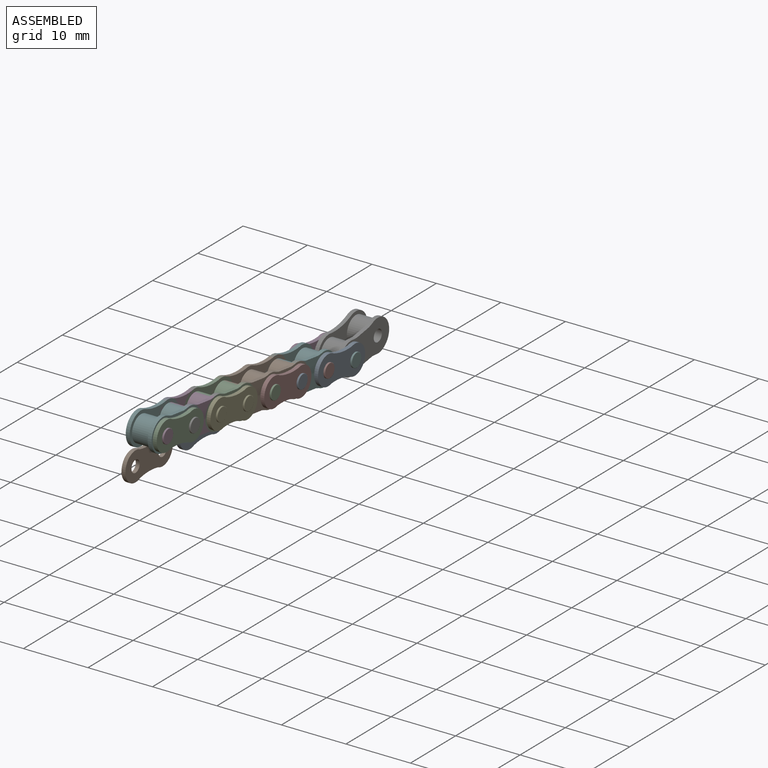
[diagram: assembled view]
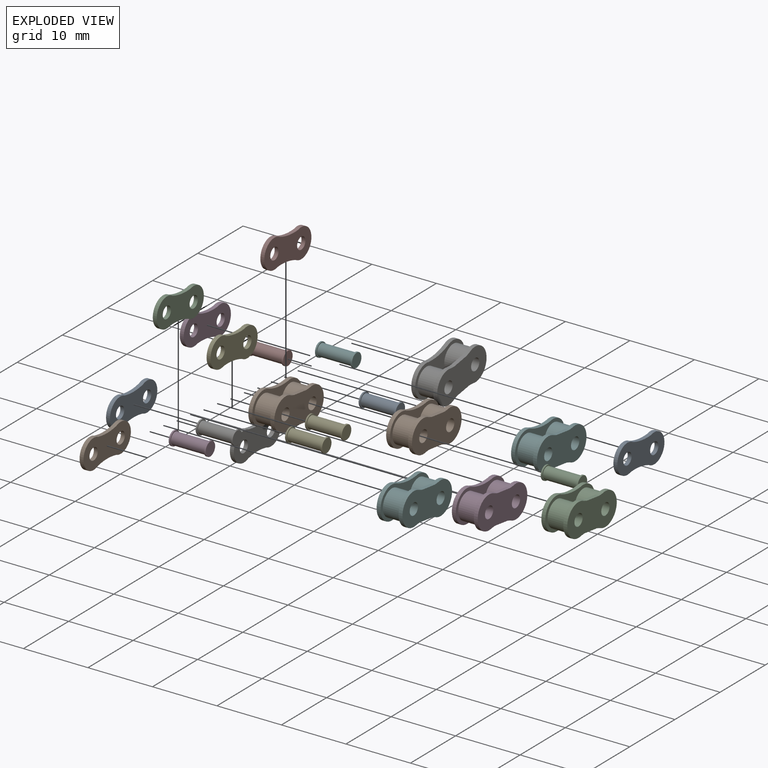
[diagram: exploded view]
GUIDED TOUR — MATED ASSEMBLY (Onshape document b15f33e1501463d08e46a01f, AutoMate assembly b15f33e1501463d08e46a01f_a6f2cac323ecb9b9a841ccf3_7491e7c9d8eb97303f44994c_default)

This assembly has 23 components, labeled P0..P22 below (a component is one placed occurrence of a part; the same part can appear more than once), held together by 9 mates. A mate is a constraint between two components; its type names the relative motion it leaves free:
  CYLINDRICAL — leaves both rotation about and translation along the listed axis free,
  PLANAR — leaves sliding in the plane through the listed point (normal = the listed direction) and rotation about that normal free,
  REVOLUTE — leaves rotation about the listed axis free (a hinge).
Axis/direction vectors are unit vectors and 'through' points are millimeter coordinates, both in the assembly's world frame.

MATES
  1. PLANAR "Planar 2": P11 <-> P13, direction (-1.000, 0.000, 0.000) through (1.30, 15.41, -2.81) mm
  2. CYLINDRICAL "Cylindrical 2": P13 <-> P0, axis (-1.000, 0.000, 0.000) through (3.92, 18.38, -3.21) mm
  3. CYLINDRICAL "Cylindrical 1": P11 <-> P13, axis (-1.000, 0.000, 0.000) through (1.30, 18.38, -3.21) mm
  4. REVOLUTE "Revolute 1": P13 <-> P14, axis (-1.000, 0.000, 0.000) through (3.92, 18.38, -3.21) mm
  5. REVOLUTE "Revolute 2": P5 <-> P15, axis (-1.000, 0.000, 0.000) through (3.92, 12.43, -2.42) mm
  6. PLANAR "Planar 1": P0 <-> P13, direction (1.000, 0.000, 0.000) through (6.53, 18.38, -3.21) mm
  7. CYLINDRICAL "Cylindrical 4": P5 <-> P11, axis (-1.000, 0.000, 0.000) through (3.92, 12.43, -2.42) mm
  8. PLANAR "Planar 3": P15 <-> P0, direction (-1.000, 0.000, 0.000) through (6.53, 12.43, -2.42) mm
  9. CYLINDRICAL "Cylindrical 3": P15 <-> P0, axis (-1.000, 0.000, 0.000) through (3.92, 12.43, -2.42) mm

ASSEMBLY ORDER
  1. P13 — the base component [order heuristic]
  2. P1 — core [order heuristic]
  3. P3 — core [order heuristic]
  4. P6 — core [order heuristic]
  5. P8 — core [order heuristic]
  6. P9 — core [order heuristic]
  7. P10 — core [order heuristic]
  8. P12 — core [order heuristic]
  9. P14 — core [order heuristic]
  10. P18 — core [order heuristic]
  11. P19 — core [order heuristic]
  12. P20 — core [order heuristic]
  13. P21 — core [order heuristic]
  14. P5 — core [order heuristic]
  15. P15 — core [order heuristic]
  16. P4 [order verified]
  17. P7 [order verified]
  18. P2 [order verified]
  19. P11 [order verified]
  20. P0 [order verified]
  21. P22 [order verified]
  22. P17 [order verified]
  23. P16 [order verified]
Order-tag legend:
  [order verified] — this step's position reverses a verified removal order: the component was checked to insert without passing through the ones already placed.
  [order heuristic] — the first 15 components form the assembly's core: parts whose collision-free extraction could not be verified, listed in mate-graph order.

Of the 23 components, 15 carry the full construction recipe — the FeatureScript program that regenerates the part's solid from scratch; the rest are supplied as boundary geometry only.
Because this assembly has more than 12 components, the tour below covers the 12 most significant ones individually (every recipe-attached component first, then the largest by part volume), in assembly order; the remaining 11 are summarized together in a grouped section at the end.
Each toured component is shown spotlighted twice — in the assembled view, then in the exploded view, where a leader line traces a displaced component back to its assembled socket (saturated green if recipe-attached, orange if geometry-only; every other component desaturated gray) — followed by its recipe or geometry summary and the mates that hold it.
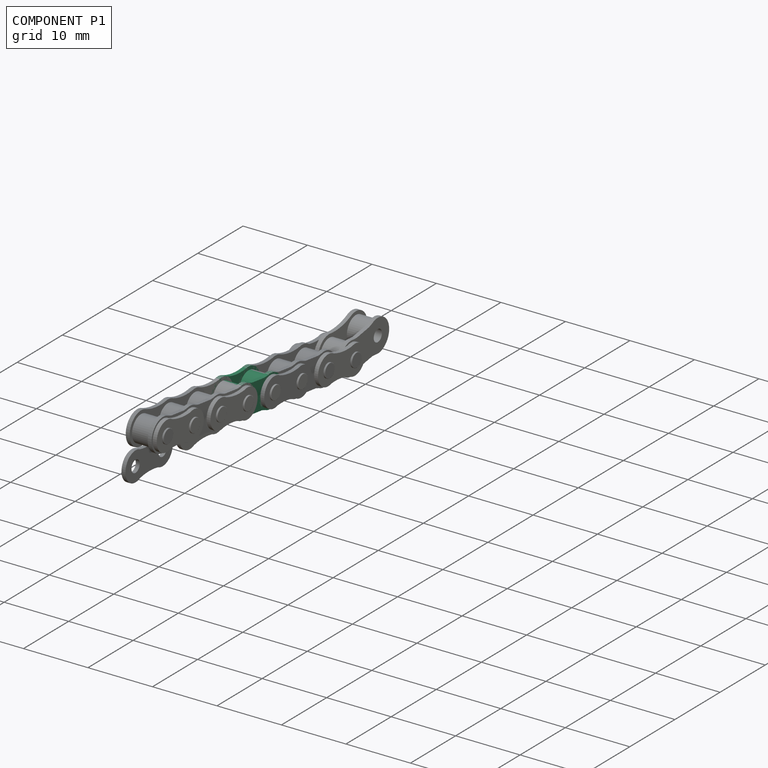
[diagram: component P1 — assembled]
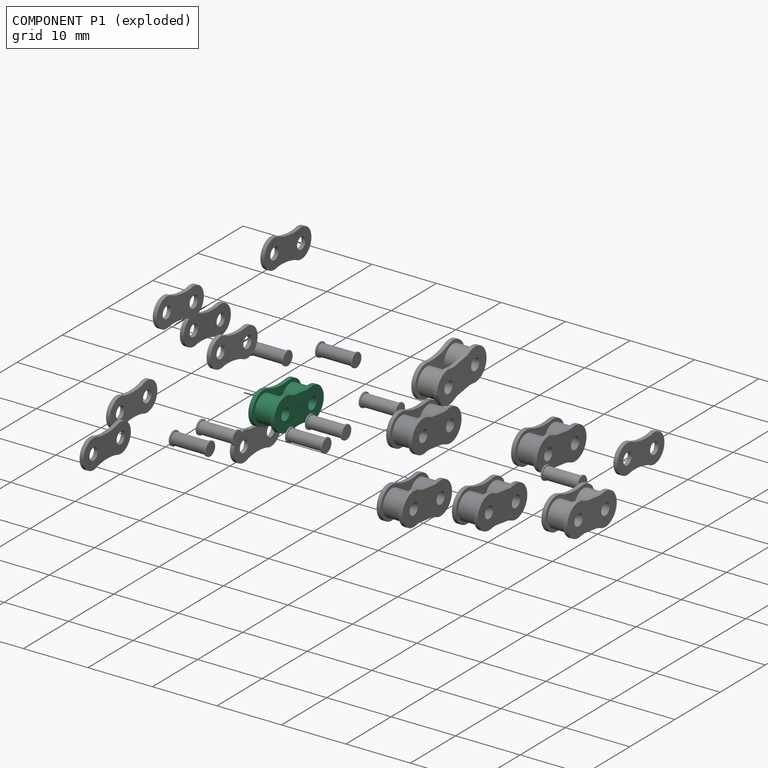
[diagram: component P1 — exploded]
COMPONENT P1 — recipe-attached (CADFS 00677428, mesh-verified: the recipe's output STEP matches this component's geometry to below the mesh-comparison resolution (tessellation chordal tolerance ~0.0191 mm)).
Held by: no mates (free).
Construction recipe (FeatureScript — the CAD program that rebuilds this solid; sketch coordinates are in the units given by the * unit suffixes, e.g. mm):

FeatureScript 1511;
import(path : "onshape/std/geometry.fs", version : "1511.0");
import(path : "onshape/std/common.fs", version : "1511.0");
const mm = millimeter;
const VERTEX = EntityType.VERTEX;
const EDGE = EntityType.EDGE;
const FACE = EntityType.FACE;
const BODY = EntityType.BODY;
function v(x, y){return vector(x, y);}
function OD(order){return orderDisambiguation(order);}
function OSD(set){return originalSetDisambiguation(set);}
function TD(topology){return topologyDisambiguation(topology);}
function TDD(query){return trueDependencyDisambiguation(query);}
function sQuery(a, b, c) {return sketchEntityQuery(a, b, c);}

annotation { "Feature Type Name" : "Feature", "Feature Type Description" : "" }
export const myFeature = defineFeature(function(context is Context, id is Id, definition is map)
    precondition{}
    {
        {
            var Q0;
            Q0=qCreatedBy(makeId("Right.planeOp"),FACE);
            var sketch = newSketch(context, id + "F0", { "sketchPlane" : qUnion([Q0])});
            skArc(sketch, "E0", {"start": v(-2.12, 2.36) * mm, "mid": v(-5.51, 0) * mm, "end": v(-2.12, -2.36) * mm});
            skArc(sketch, "E1", {"start": v(2.12, -2.36) * mm, "mid": v(5.51, 0) * mm, "end": v(2.12, 2.36) * mm});
            skArc(sketch, "E2", {"start": v(-2.12, 2.36) * mm, "mid": v(0, 2.1) * mm, "end": v(2.12, 2.36) * mm});
            skArc(sketch, "E3.MirrorCS", {"start": v(-2.12, -2.36) * mm, "mid": v(0, -2.1) * mm, "end": v(2.12, -2.36) * mm});
            skCircle(sketch, "E4", {"center": v(-3, 0) * mm, "radius": 0.91 * mm});
            skCircle(sketch, "E5.MirrorC", {"center": v(3, 0) * mm, "radius": 0.91 * mm});
            skSolve(sketch);
        }
        {
            var Q0;
            Q0 = qSketchRegion(id + "F0", true);
            extrude(context, id + "F1", {"entities" : qUnion([Q0]), "endBound" : BoundingType.SYMMETRIC, "depth" : 0.6 * mm, "offsetDistance" : 25 * mm});
        }
        {
            var Q0;
            Q0=makeQuery(id+"F1.opExtrude","CAP_FACE",FACE,{"disambiguationData":[OSD([sQuery(id+"F0.wireOp",EDGE,"E0"),sQuery(id+"F0.wireOp",EDGE,"E1"),sQuery(id+"F0.wireOp",EDGE,"E2"),sQuery(id+"F0.wireOp",EDGE,"E3.MirrorCS"),sQuery(id+"F0.wireOp",EDGE,"E4"),sQuery(id+"F0.wireOp",EDGE,"E5.MirrorC")])],"isStart":false});
            var sketch = newSketch(context, id + "F2", { "sketchPlane" : qUnion([Q0])});
            skCircle(sketch, "E6", {"center": v(-3, 0) * mm, "radius": 0.91 * mm});
            skCircle(sketch, "E7", {"center": v(-3, 0) * mm, "radius": 2 * mm});
            skSolve(sketch);
        }
        {
            var Q0;
            Q0 = qSketchRegion(id + "F2", true);
            extrude(context, id + "F3", {"entities" : qUnion([Q0]), "operationType" : NewBodyOperationType.ADD, "depth" : 2.8 * mm / 2, "offsetDistance" : 25 * mm});
        }
        {
            var Q0;
            Q0=makeQuery(id+"F1.opExtrude","SWEPT_BODY",BODY,{"disambiguationData":[OSD([sQuery(id+"F0.wireOp",EDGE,"E0"),sQuery(id+"F0.wireOp",EDGE,"E1"),sQuery(id+"F0.wireOp",EDGE,"E2"),sQuery(id+"F0.wireOp",EDGE,"E3.MirrorCS"),sQuery(id+"F0.wireOp",EDGE,"E4"),sQuery(id+"F0.wireOp",EDGE,"E5.MirrorC")])]});
            var Q1;
            Q1=qCreatedBy(makeId("Front.planeOp"),FACE);
            mirror(context, id + "F4", {"operationType" : NewBodyOperationType.ADD, "entities" : qUnion([Q0]), "mirrorPlane" : qUnion([Q1])});
        }
        {
            var Q0;
            Q0=makeQuery(id+"F1.opExtrude","SWEPT_BODY",BODY,{"disambiguationData":[OSD([sQuery(id+"F0.wireOp",EDGE,"E0"),sQuery(id+"F0.wireOp",EDGE,"E1"),sQuery(id+"F0.wireOp",EDGE,"E2"),sQuery(id+"F0.wireOp",EDGE,"E3.MirrorCS"),sQuery(id+"F0.wireOp",EDGE,"E4"),sQuery(id+"F0.wireOp",EDGE,"E5.MirrorC")])]});
            var Q1;
            Q1=makeQuery(id+"F3.opExtrude","CAP_FACE",FACE,{"disambiguationData":[OSD([sQuery(id+"F2.wireOp",EDGE,"E6"),sQuery(id+"F2.wireOp",EDGE,"E7")])],"isStart":false});
            mirror(context, id + "F5", {"operationType" : NewBodyOperationType.ADD, "entities" : qUnion([Q0]), "mirrorPlane" : qUnion([Q1])});
        }
        {
            var Q0;
            Q0=makeQuery(id+"F5.opPattern","COPY",FACE,{"derivedFrom":makeQuery(id+"F1.opExtrude","CAP_FACE",FACE,{"disambiguationData":[OSD([sQuery(id+"F0.wireOp",EDGE,"E0"),sQuery(id+"F0.wireOp",EDGE,"E1"),sQuery(id+"F0.wireOp",EDGE,"E2"),sQuery(id+"F0.wireOp",EDGE,"E3.MirrorCS"),sQuery(id+"F0.wireOp",EDGE,"E4"),sQuery(id+"F0.wireOp",EDGE,"E5.MirrorC")])],"isStart":true}),"instanceName":"1"});
            var sketch = newSketch(context, id + "F6", { "sketchPlane" : qUnion([Q0])});
            skLineSegment(sketch, "E8", {"start": v(0, 0) * mm, "end": v(4.83, 0) * mm});
            skSolve(sketch);
        }
        {
            var Q0;
            Q0=makeQuery(id+"F6.imprint","IMPRINT",FACE,{"disambiguationData":[TD([[makeQuery(id+"F6.imprint","IMPRINT",EDGE,{"derivedFrom":makeQuery(id+"F5.opPattern","COPY",EDGE,{"derivedFrom":makeQuery(id+"F1.opExtrude","CAP_EDGE",EDGE,{"disambiguationData":[OSD([sQuery(id+"F0.wireOp",EDGE,"E0")])],"isStart":true}),"instanceName":"1"})}),1.0]])]});
            var sketch = newSketch(context, id + "F7", { "sketchPlane" : qUnion([Q0])});
            skLineSegment(sketch, "E9", {"start": v(-1.66, 2.2) * mm, "end": v(1.7, 2.2) * mm});
            skLineSegment(sketch, "E10", {"start": v(-1.66, 2.2) * mm, "end": v(0, 0) * mm});
            skLineSegment(sketch, "E11", {"start": v(0, 0) * mm, "end": v(1.7, 2.2) * mm});
            skLineSegment(sketch, "E12", {"start": v(0, 0) * mm, "end": v(-0.57, 0) * mm});
            skLineSegment(sketch, "E13.MirrorCS", {"start": v(-1.66, -2.2) * mm, "end": v(0, 0) * mm});
            skLineSegment(sketch, "E14.MirrorCS", {"start": v(-1.66, -2.2) * mm, "end": v(1.7, -2.2) * mm});
            skLineSegment(sketch, "E15.MirrorCS", {"start": v(0, 0) * mm, "end": v(1.7, -2.2) * mm});
            skSolve(sketch);
        }
        {
            var Q0;
            {var subQ0=sQuery(id+"F7.wireOp",EDGE,"E9");var subQ1=makeQuery(id+"F6.imprint","IMPRINT",EDGE,{"derivedFrom":makeQuery(id+"F5.opPattern","COPY",EDGE,{"derivedFrom":makeQuery(id+"F1.opExtrude","CAP_EDGE",EDGE,{"disambiguationData":[OSD([sQuery(id+"F0.wireOp",EDGE,"E2")])],"isStart":true}),"instanceName":"1"})});var subQ2=makeQuery(id+"F7.imprint","INTERSECT",VERTEX,{"disambiguationData":[OD(0.0)],"derivedFrom":[subQ1,subQ0]});Q0=makeQuery(id+"F7.imprint","IMPRINT",FACE,{"disambiguationData":[TD([[makeQuery(id+"F7.imprint","IMPRINT",EDGE,{"disambiguationData":[TD([[subQ2,-1.0]])],"derivedFrom":subQ0}),-1.0]])]});}
            var Q1;
            {var subQ0=sQuery(id+"F7.wireOp",EDGE,"E14.MirrorCS");var subQ1=makeQuery(id+"F6.imprint","IMPRINT",EDGE,{"derivedFrom":makeQuery(id+"F5.opPattern","COPY",EDGE,{"derivedFrom":makeQuery(id+"F1.opExtrude","CAP_EDGE",EDGE,{"disambiguationData":[OSD([sQuery(id+"F0.wireOp",EDGE,"E3.MirrorCS")])],"isStart":true}),"instanceName":"1"})});var subQ2=makeQuery(id+"F7.imprint","INTERSECT",VERTEX,{"disambiguationData":[OD(0.0)],"derivedFrom":[subQ1,subQ0]});Q1=makeQuery(id+"F7.imprint","IMPRINT",FACE,{"disambiguationData":[TD([[makeQuery(id+"F7.imprint","IMPRINT",EDGE,{"disambiguationData":[TD([[subQ2,-1.0]])],"derivedFrom":subQ0}),1.0]])]});}
            var Q2;
            Q2=makeQuery(id+"F5.opPattern","COPY",FACE,{"derivedFrom":makeQuery(id+"F1.opExtrude","CAP_FACE",FACE,{"disambiguationData":[OSD([sQuery(id+"F0.wireOp",EDGE,"E0"),sQuery(id+"F0.wireOp",EDGE,"E1"),sQuery(id+"F0.wireOp",EDGE,"E2"),sQuery(id+"F0.wireOp",EDGE,"E3.MirrorCS"),sQuery(id+"F0.wireOp",EDGE,"E4"),sQuery(id+"F0.wireOp",EDGE,"E5.MirrorC")])],"isStart":false}),"instanceName":"1"});
            extrude(context, id + "F8", {"entities" : qUnion([Q0, Q1]), "operationType" : NewBodyOperationType.ADD, "endBound" : BoundingType.UP_TO_SURFACE, "oppositeDirection" : true, "depth" : 25 * mm, "endBoundEntityFace" : qUnion([Q2]), "offsetDistance" : 25 * mm});
        }
    });
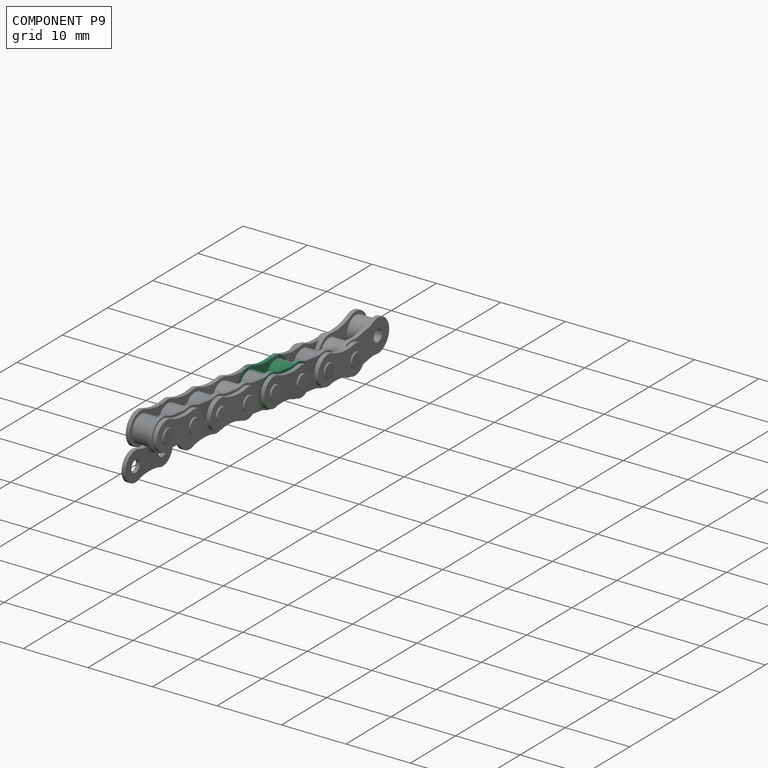
[diagram: component P9 — assembled]
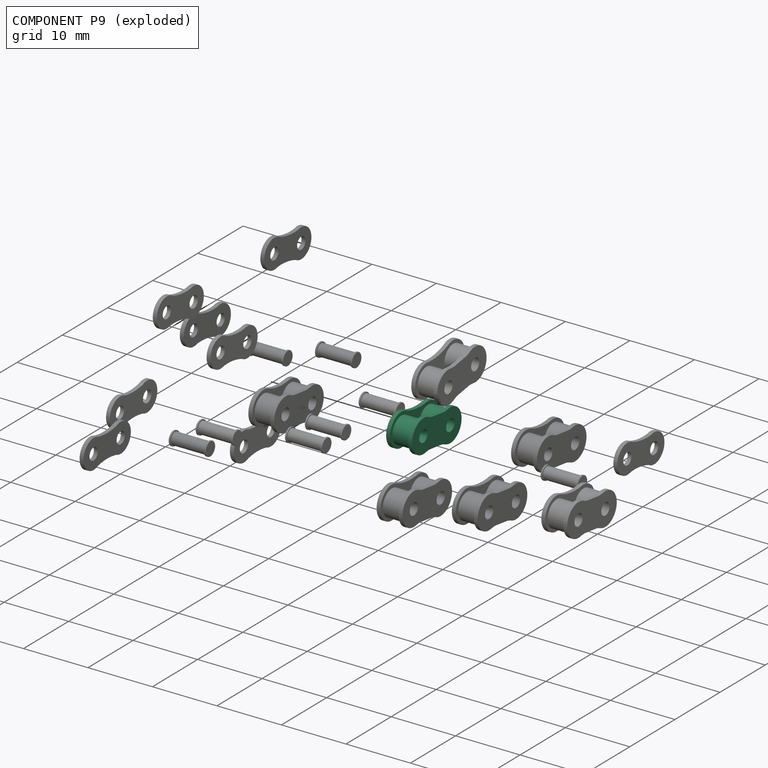
[diagram: component P9 — exploded]
COMPONENT P9 — same part as P1 (CADFS 00677428); its construction recipe is shown at P1.
Held by: no mates (free).
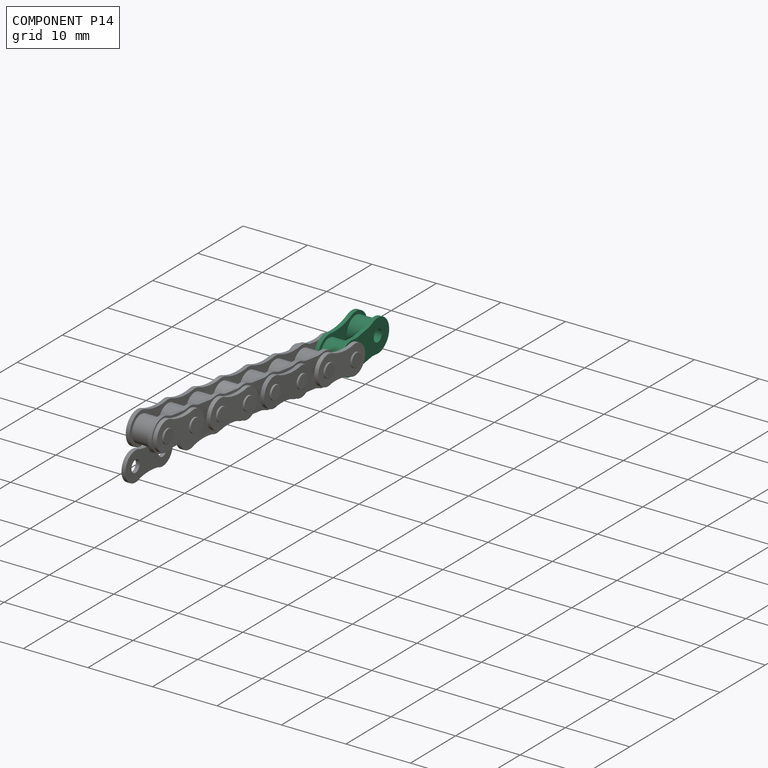
[diagram: component P14 — assembled]
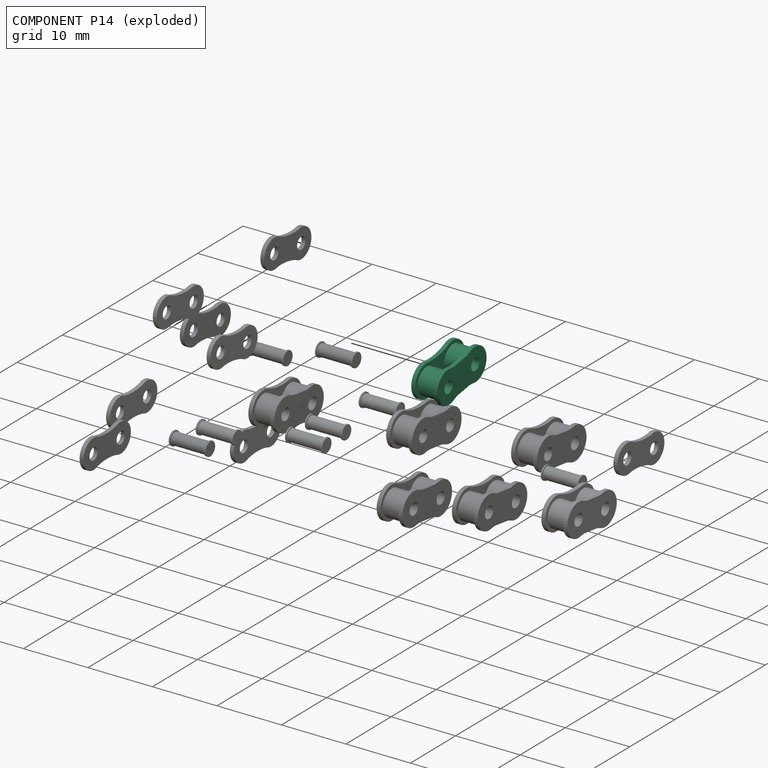
[diagram: component P14 — exploded]
COMPONENT P14 — same part as P1 (CADFS 00677428); its construction recipe is shown at P1.
Held by: REVOLUTE mate "Revolute 1" to P13.
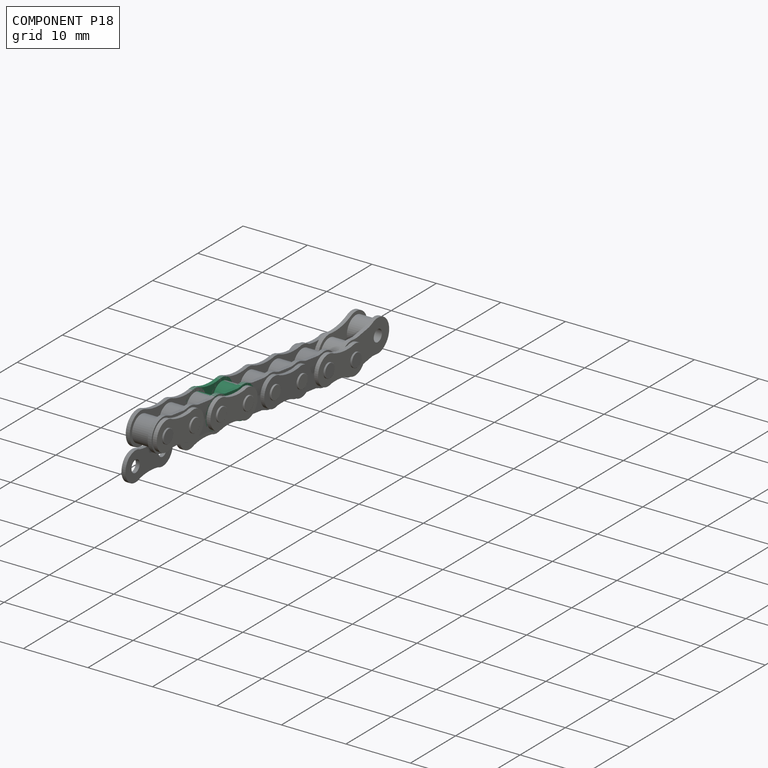
[diagram: component P18 — assembled]
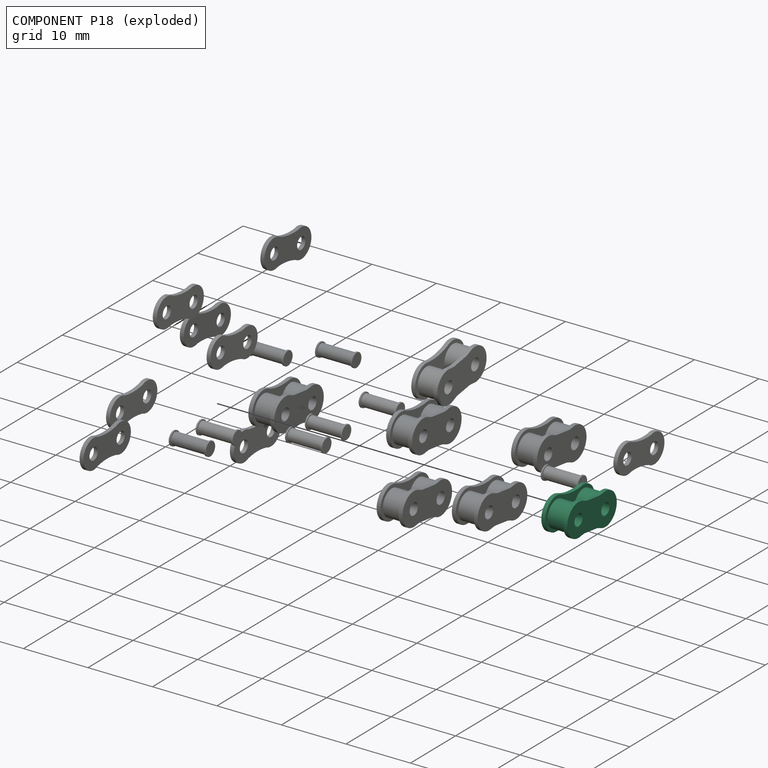
[diagram: component P18 — exploded]
COMPONENT P18 — same part as P1 (CADFS 00677428); its construction recipe is shown at P1.
Held by: no mates (free).
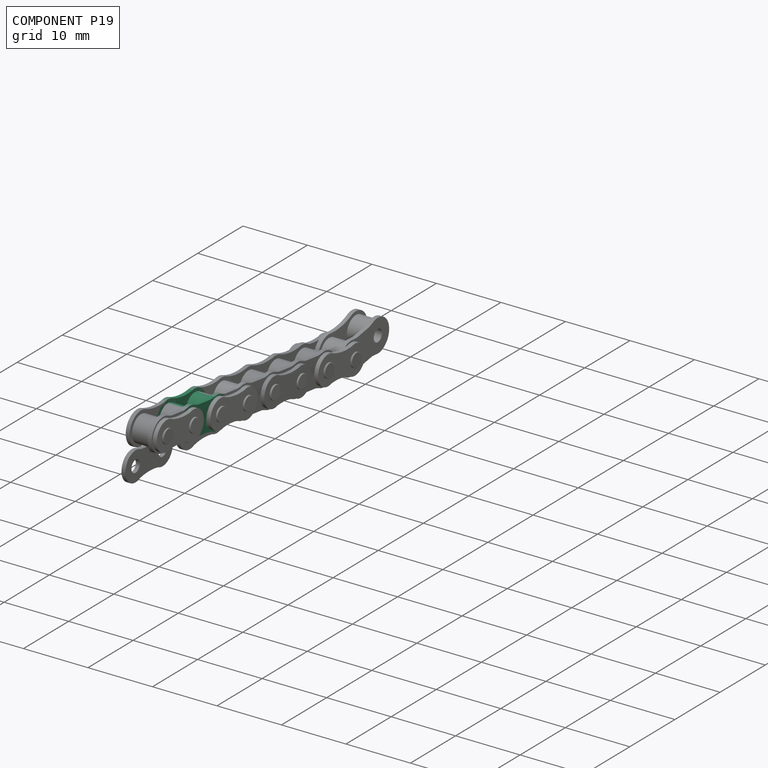
[diagram: component P19 — assembled]
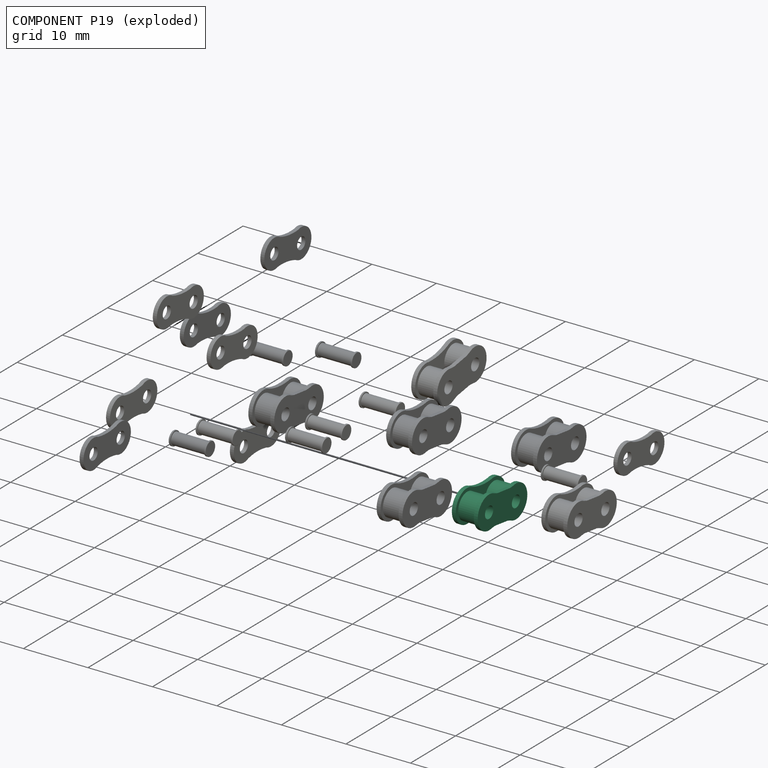
[diagram: component P19 — exploded]
COMPONENT P19 — same part as P1 (CADFS 00677428); its construction recipe is shown at P1.
Held by: no mates (free).
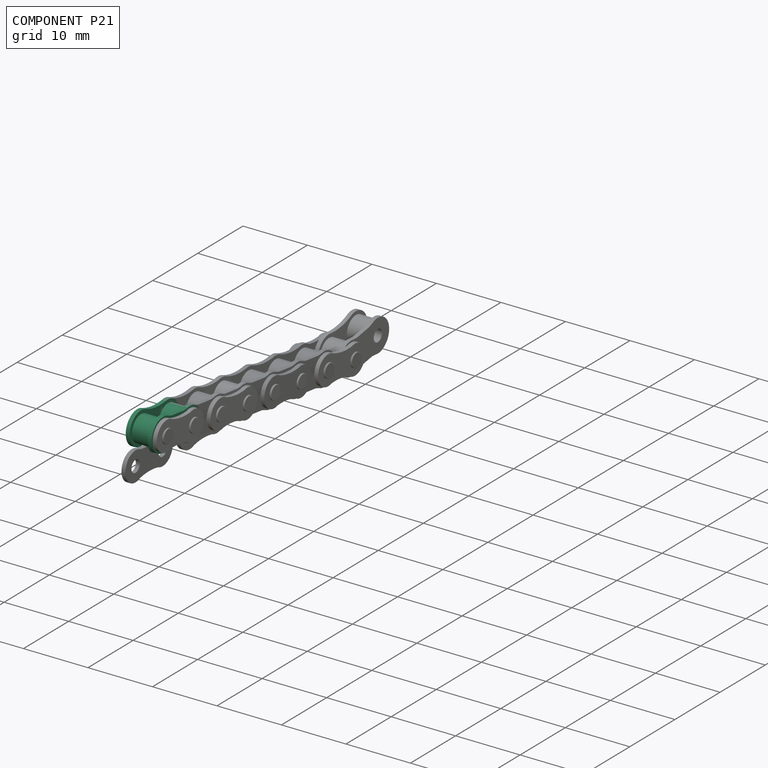
[diagram: component P21 — assembled]
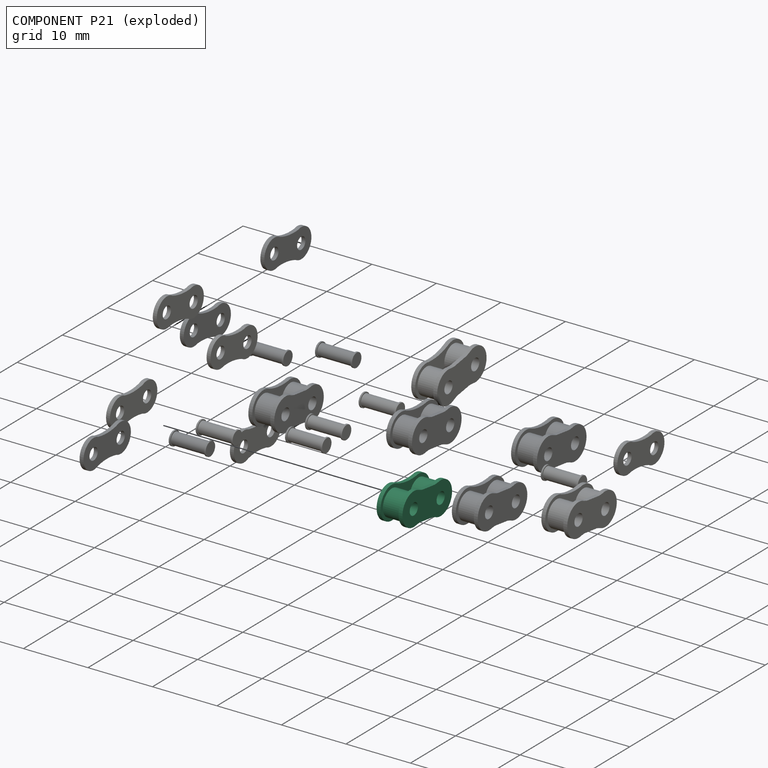
[diagram: component P21 — exploded]
COMPONENT P21 — same part as P1 (CADFS 00677428); its construction recipe is shown at P1.
Held by: no mates (free).
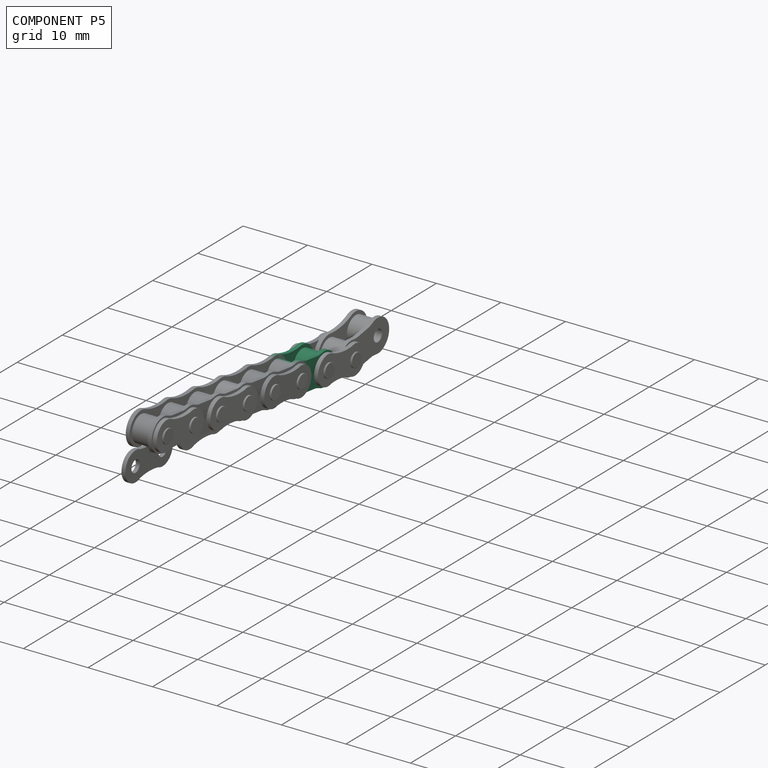
[diagram: component P5 — assembled]
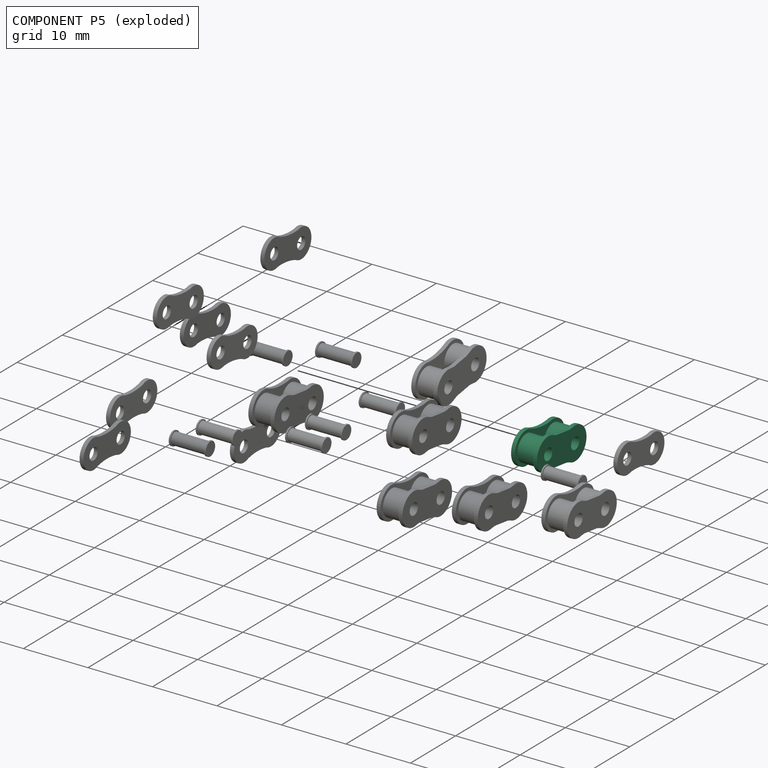
[diagram: component P5 — exploded]
COMPONENT P5 — same part as P1 (CADFS 00677428); its construction recipe is shown at P1.
Held by: REVOLUTE mate "Revolute 2" to P15; CYLINDRICAL mate "Cylindrical 4" to P11.
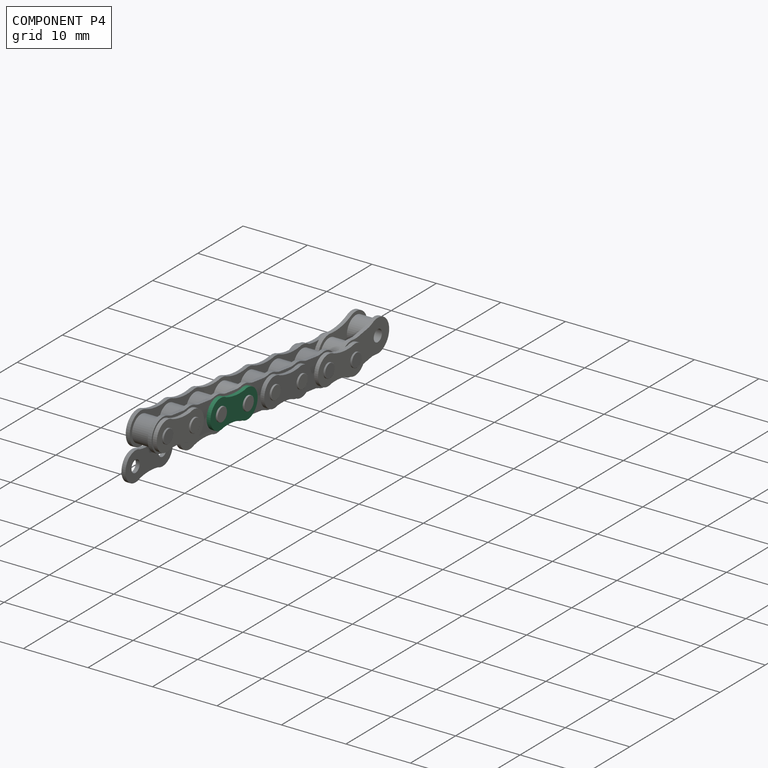
[diagram: component P4 — assembled]
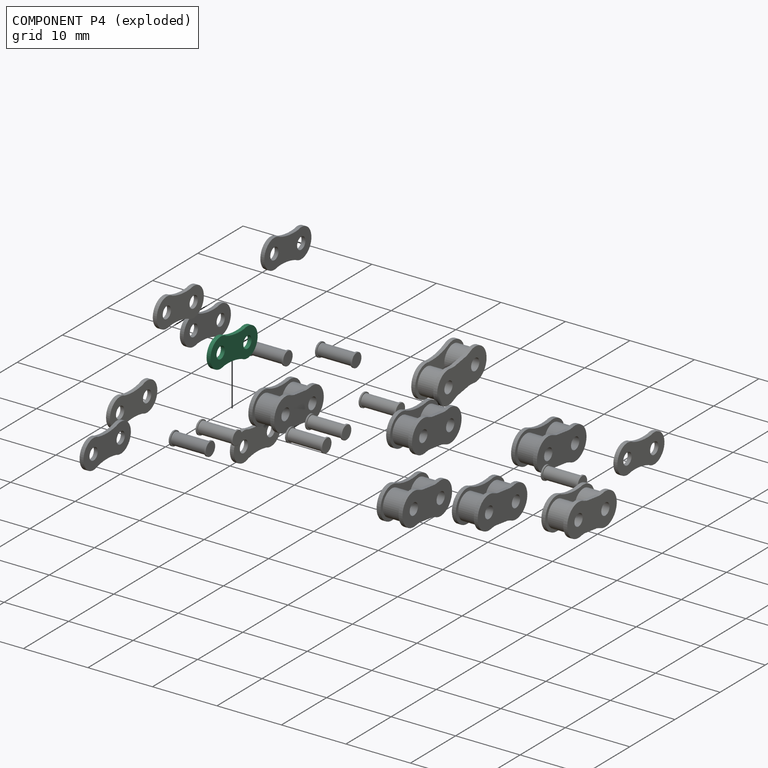
[diagram: component P4 — exploded]
COMPONENT P4 — same part as P0 (CADFS 00677429); its construction recipe is shown at P0.
Held by: no mates (free).
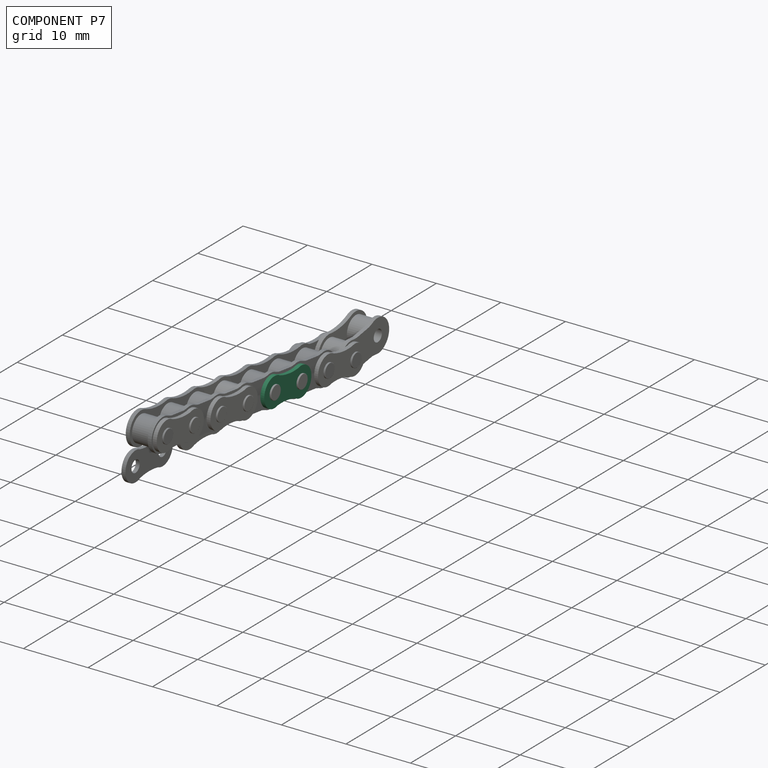
[diagram: component P7 — assembled]
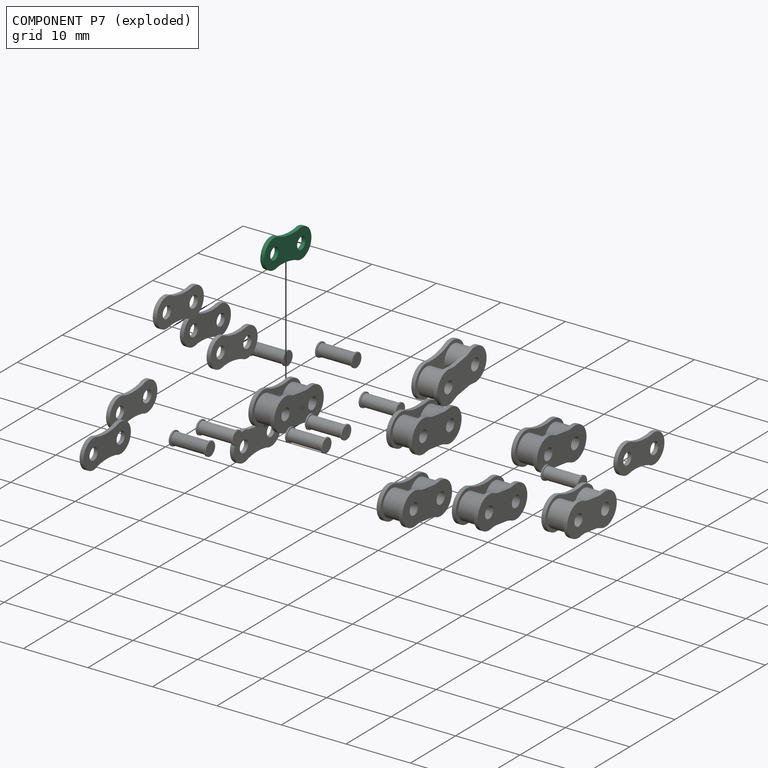
[diagram: component P7 — exploded]
COMPONENT P7 — same part as P0 (CADFS 00677429); its construction recipe is shown at P0.
Held by: no mates (free).
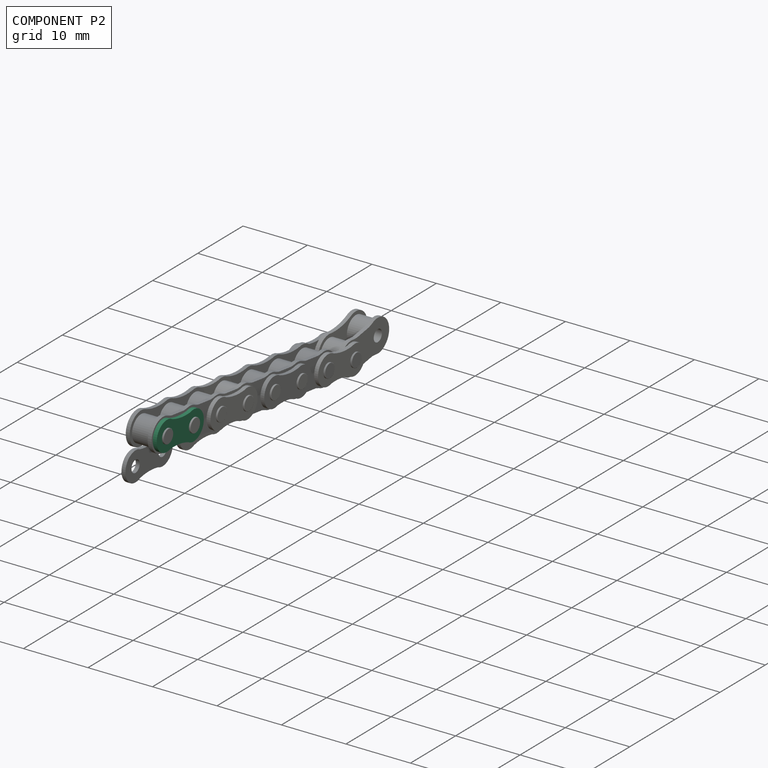
[diagram: component P2 — assembled]
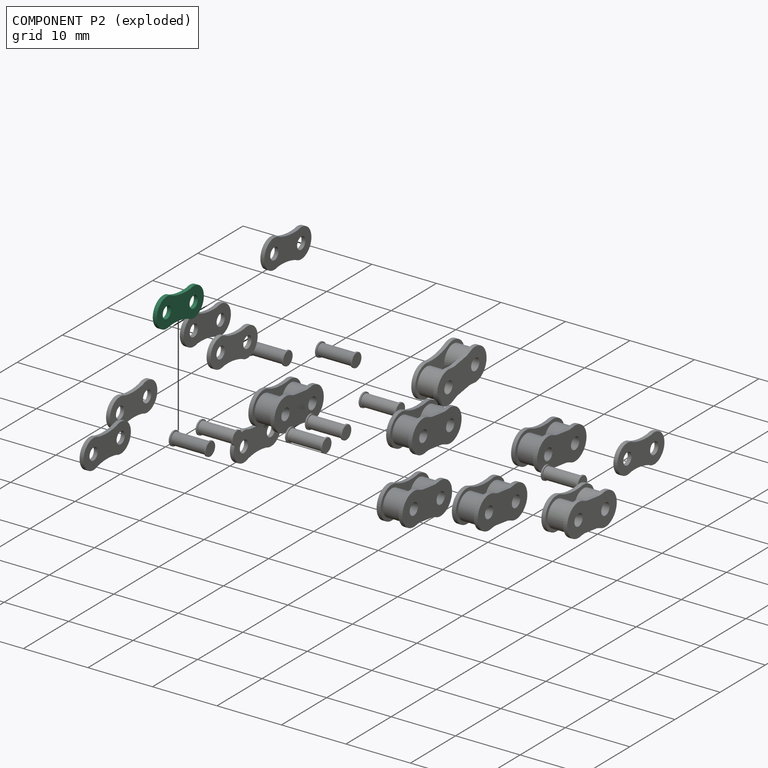
[diagram: component P2 — exploded]
COMPONENT P2 — same part as P0 (CADFS 00677429); its construction recipe is shown at P0.
Held by: no mates (free).
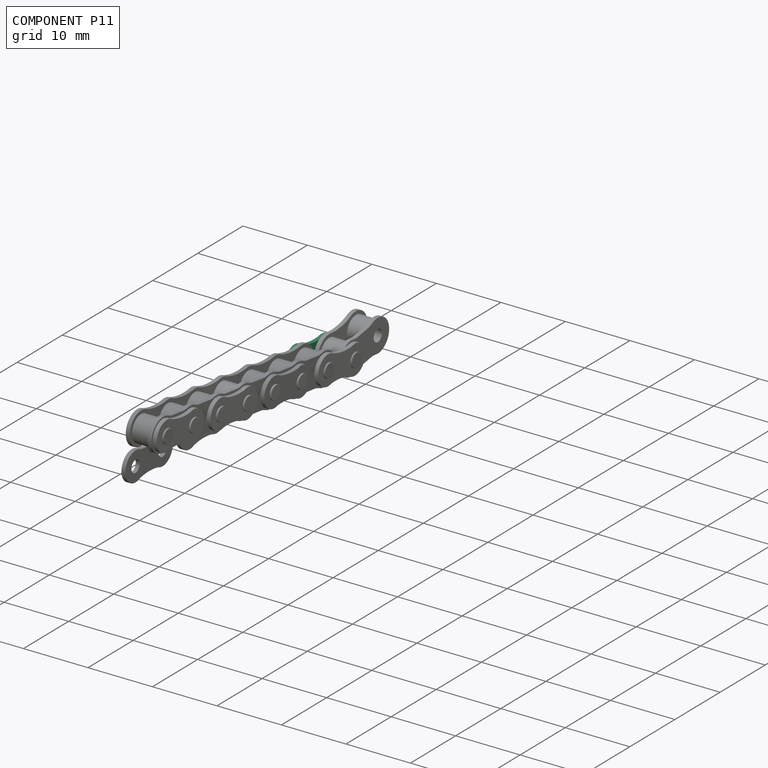
[diagram: component P11 — assembled]
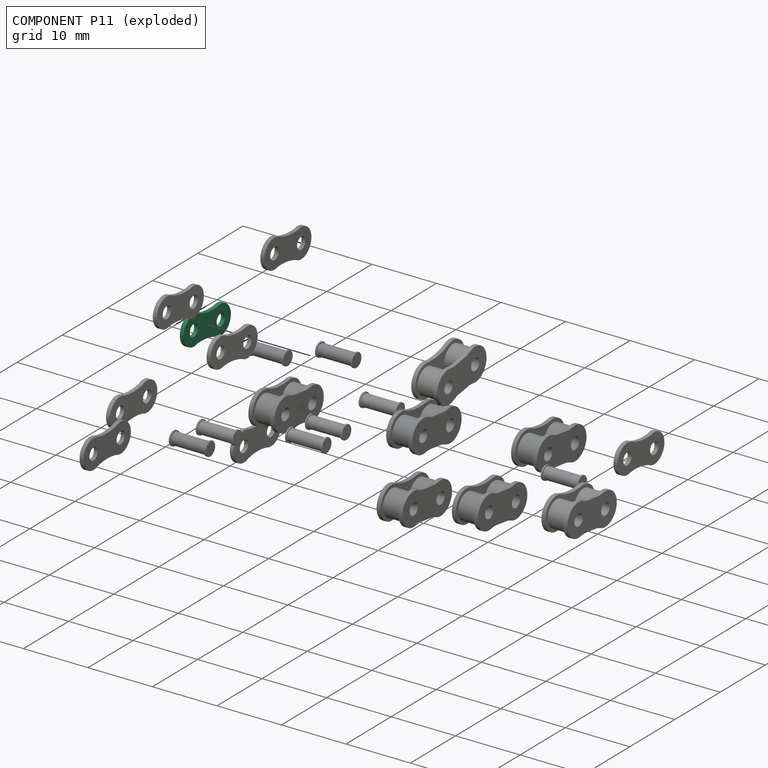
[diagram: component P11 — exploded]
COMPONENT P11 — same part as P0 (CADFS 00677429); its construction recipe is shown at P0.
Held by: PLANAR mate "Planar 2" to P13; CYLINDRICAL mate "Cylindrical 1" to P13; CYLINDRICAL mate "Cylindrical 4" to P5.
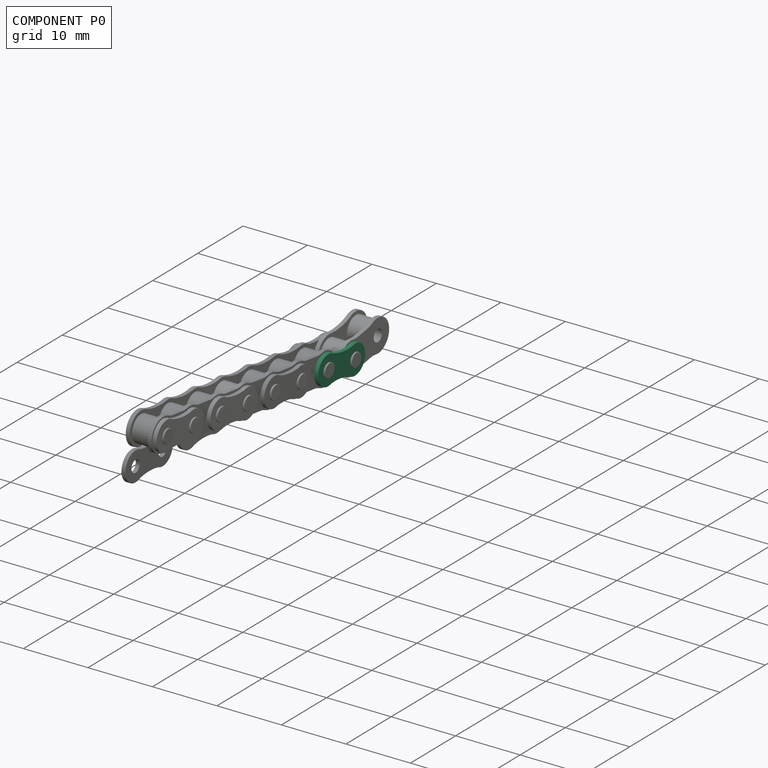
[diagram: component P0 — assembled]
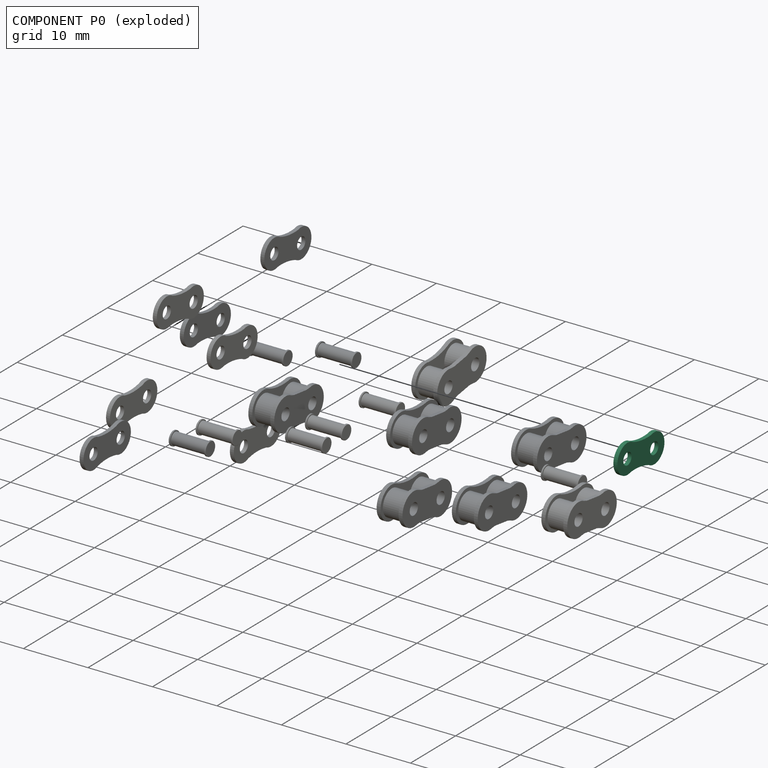
[diagram: component P0 — exploded]
COMPONENT P0 — recipe-attached (CADFS 00677429, mesh-verified: the recipe's output STEP matches this component's geometry to below the mesh-comparison resolution (tessellation chordal tolerance ~0.0172 mm)).
Held by: CYLINDRICAL mate "Cylindrical 2" to P13; PLANAR mate "Planar 1" to P13; PLANAR mate "Planar 3" to P15; CYLINDRICAL mate "Cylindrical 3" to P15.
Construction recipe (FeatureScript — the CAD program that rebuilds this solid; sketch coordinates are in the units given by the * unit suffixes, e.g. mm):

FeatureScript 1511;
import(path : "onshape/std/geometry.fs", version : "1511.0");
import(path : "onshape/std/common.fs", version : "1511.0");
const mm = millimeter;
const VERTEX = EntityType.VERTEX;
const EDGE = EntityType.EDGE;
const FACE = EntityType.FACE;
const BODY = EntityType.BODY;
function v(x, y){return vector(x, y);}
function OD(order){return orderDisambiguation(order);}
function OSD(set){return originalSetDisambiguation(set);}
function TD(topology){return topologyDisambiguation(topology);}
function TDD(query){return trueDependencyDisambiguation(query);}
function sQuery(a, b, c) {return sketchEntityQuery(a, b, c);}

annotation { "Feature Type Name" : "Feature", "Feature Type Description" : "" }
export const myFeature = defineFeature(function(context is Context, id is Id, definition is map)
    precondition{}
    {
        {
            var Q0;
            Q0=qCreatedBy(makeId("Right.planeOp"),FACE);
            var sketch = newSketch(context, id + "F0", { "sketchPlane" : qUnion([Q0])});
            skCircle(sketch, "E0", {"center": v(-3, 0) * mm, "radius": 0.91 * mm});
            skCircle(sketch, "E1.MirrorC", {"center": v(3, 0) * mm, "radius": 0.91 * mm});
            skArc(sketch, "E2", {"start": v(-2, 2.02) * mm, "mid": v(-5.25, 0) * mm, "end": v(-2, -2.02) * mm});
            skArc(sketch, "E3.MirrorC", {"start": v(2, 2.02) * mm, "mid": v(5.25, 0) * mm, "end": v(2, -2.02) * mm});
            skArc(sketch, "E4.0", {"start": v(-2, 2.02) * mm, "mid": v(0, 1.8) * mm, "end": v(2, 2.02) * mm});
            skArc(sketch, "E5.MirrorCS", {"start": v(-2, -2.02) * mm, "mid": v(0, -1.8) * mm, "end": v(2, -2.02) * mm});
            skSolve(sketch);
        }
        {
            var Q0;
            Q0 = qSketchRegion(id + "F0", true);
            extrude(context, id + "F1", {"entities" : qUnion([Q0]), "depth" : 0.6 * mm, "offsetDistance" : 25 * mm});
        }
    });
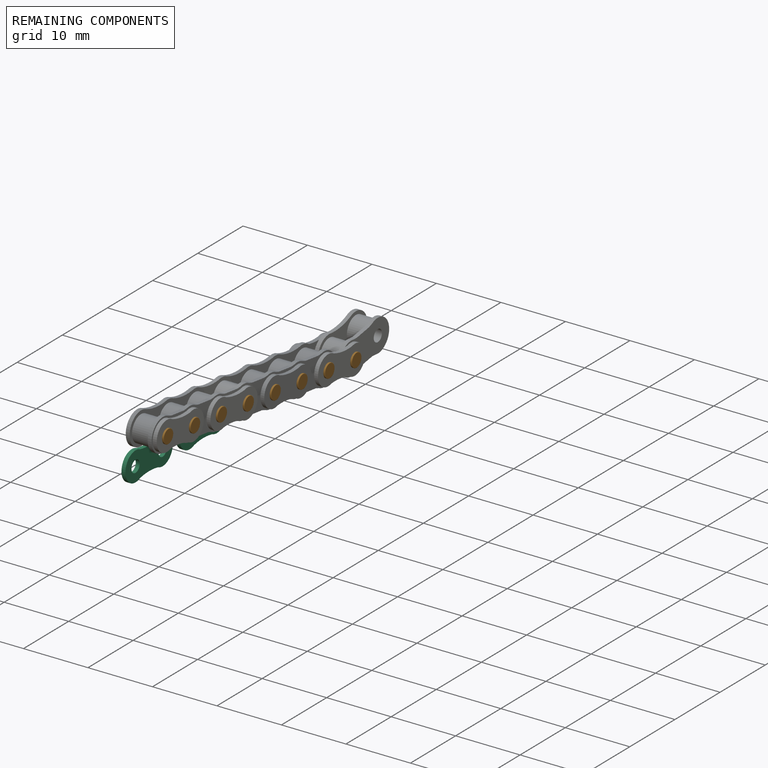
[diagram: remaining components — assembled]
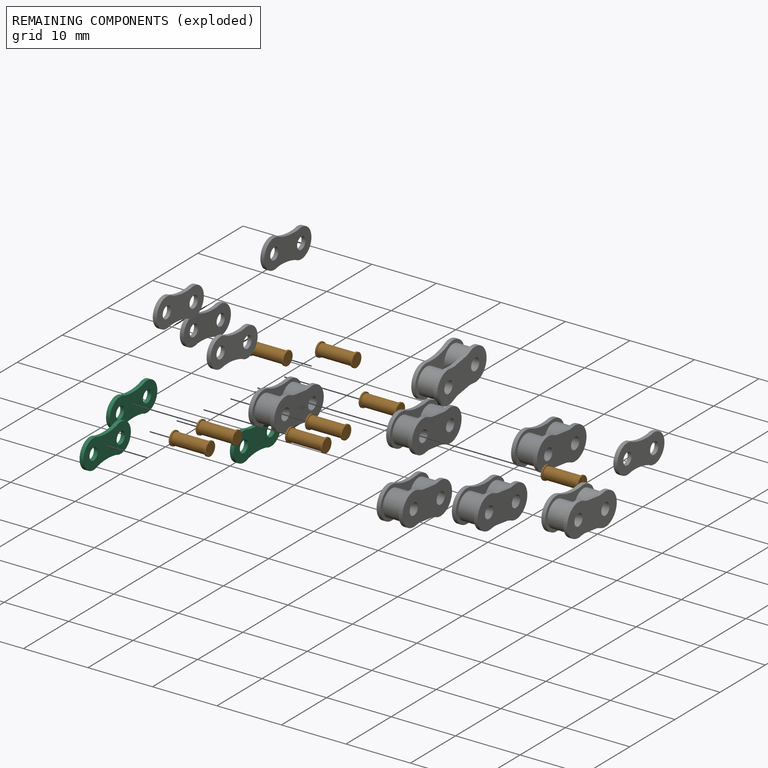
[diagram: remaining components — exploded]
REMAINING COMPONENTS (grouped) — the 11 components below fall outside the per-component tour by the significance rule stated above; both spotlight views highlight the whole group.
  P13: bounding box 5.7 x 2.3 x 2.3 mm, volume 16 mm^3. Held by: PLANAR mate "Planar 2" to P11; CYLINDRICAL mate "Cylindrical 2" to P0; CYLINDRICAL mate "Cylindrical 1" to P11; REVOLUTE mate "Revolute 1" to P14; PLANAR mate "Planar 1" to P0.
  P3: bounding box 5.7 x 2.3 x 2.3 mm, volume 16 mm^3. Held by: no mates (free).
  P6: bounding box 5.7 x 2.3 x 2.3 mm, volume 16 mm^3. Held by: no mates (free).
  P8: bounding box 5.7 x 2.3 x 2.3 mm, volume 16 mm^3. Held by: no mates (free).
  P10: bounding box 5.7 x 2.3 x 2.3 mm, volume 16 mm^3. Held by: no mates (free).
  P12: bounding box 5.7 x 2.3 x 2.3 mm, volume 16 mm^3. Held by: no mates (free).
  P20: bounding box 5.7 x 2.3 x 2.3 mm, volume 16 mm^3. Held by: no mates (free).
  P15: bounding box 5.7 x 2.3 x 2.3 mm, volume 16 mm^3. Held by: REVOLUTE mate "Revolute 2" to P5; PLANAR mate "Planar 3" to P0; CYLINDRICAL mate "Cylindrical 3" to P0.
  P22: bounding box 10.5 x 4.5 x 0.6 mm, volume 21 mm^3. Recipe-attached (CADFS 00677429; recipe not printed under the significance rule). Held by: no mates (free).
  P17: bounding box 10.5 x 4.5 x 0.6 mm, volume 21 mm^3. Recipe-attached (CADFS 00677429; recipe not printed under the significance rule). Held by: no mates (free).
  P16: bounding box 10.5 x 4.5 x 0.6 mm, volume 21 mm^3. Recipe-attached (CADFS 00677429; recipe not printed under the significance rule). Held by: no mates (free).
PROVENANCE & LICENSES
Assembly (occurrences, transforms, mates, per-part STEP geometry): AutoMate dataset, Zenodo record 7776208, CC0.
Construction recipes: CADFS (HuggingFace VladPyatov/CADFS, CC-BY-4.0, layered over the ABC dataset), FeatureScript reconstruction programs keyed by ABC model id.
Join: ABC meta listings map ABC model id -> Onshape documentId; within a shared document, parts are matched by geometric signature (bounding-box dims + volume at 0.1% relative tolerance, exact B-rep face/solid counts).
Verification: 15 of this assembly's 23 components carry a recipe attachment, and every attachment is mesh-verified: the CADFS STEP and the AutoMate member STEP were compared as meshes in their shared local frame (symmetric sampled-point-to-mesh distance); worst across the 15 attachments: below the mesh-comparison resolution (tessellation chordal tolerance ~0.0191 mm) on a 13 mm part.
Renders: orthographic iso camera (az 35 / el 25); the floor grid conveys scale (grid pitch printed in each image; no ruler). In the exploded view each component is displaced by its stored offset vector: the offsets alone carry the explosion direction (mate normal/axis signs are not orientation cues and do not encode it), and separation distances are assigned per mate-chain, not proportionally to assembly-order depth.
